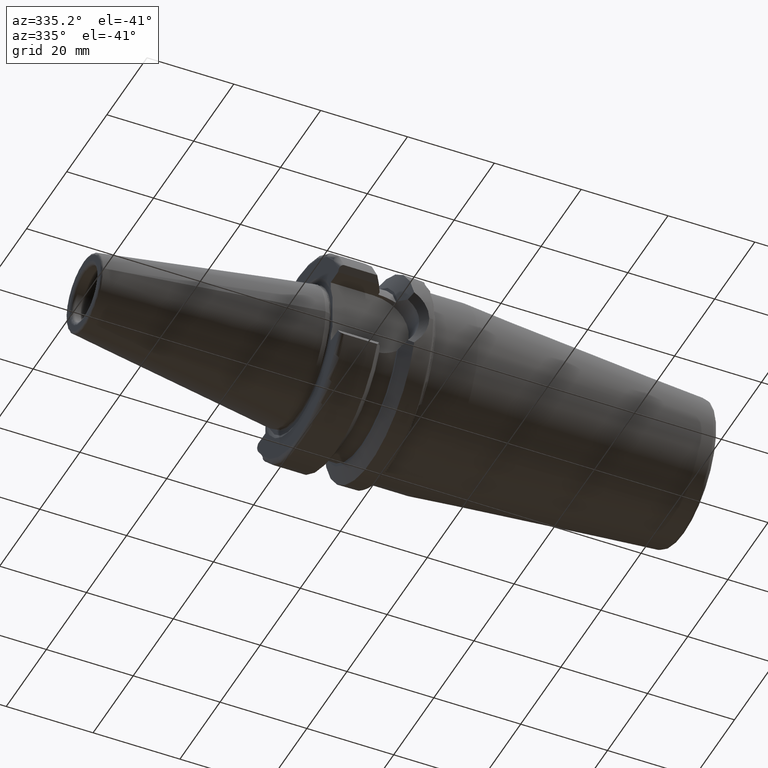
[diagram: clean part render]
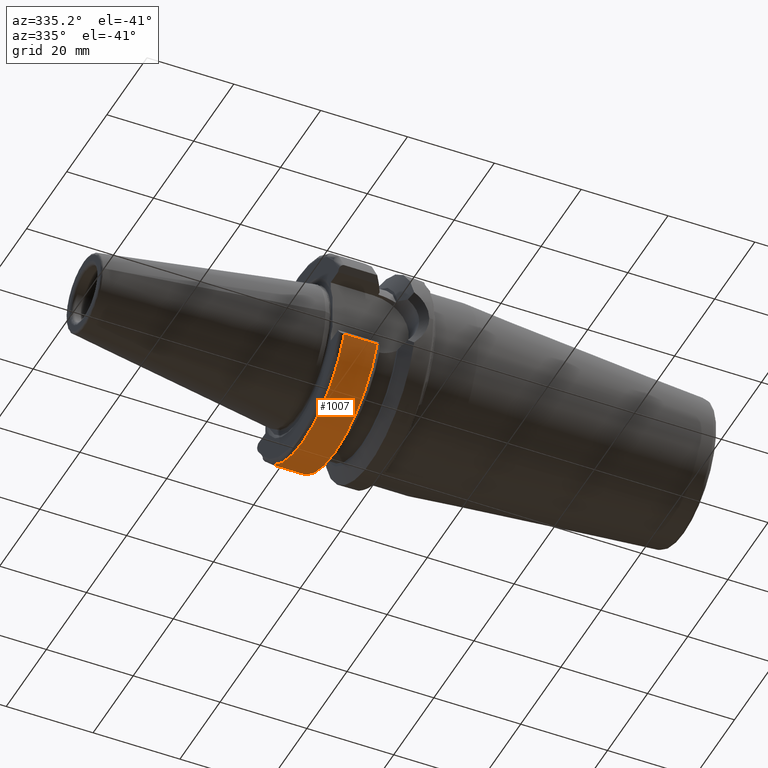
[diagram: same view with one face highlighted and labeled with its STEP entity id]
A machine part, auxiliary view. The second image highlights one B-rep face of the part: STEP entity #1007.
In plain terms, the highlighted cylindrical surface (partial cylindrical patch) has radius 23 mm, axis along (1, 0, 0).
Its self-contained STEP definition (entity closure, byte-faithful):
#103=LINE('',#1705,#157);
#106=LINE('',#1742,#160);
#157=VECTOR('',#1287,10.);
#160=VECTOR('',#1300,10.);
#209=CYLINDRICAL_SURFACE('',#1117,23.);
#238=FACE_OUTER_BOUND('',#304,.T.);
#304=EDGE_LOOP('',(#750,#751,#752,#753));
#375=CIRCLE('',#1115,22.9999999999999);
#377=CIRCLE('',#1118,23.);
#444=VERTEX_POINT('',#1693);
#445=VERTEX_POINT('',#1704);
#448=VERTEX_POINT('',#1714);
#454=VERTEX_POINT('',#1740);
#556=EDGE_CURVE('',#444,#445,#103,.T.);
#560=EDGE_CURVE('',#445,#448,#375,.T.);
#567=EDGE_CURVE('',#444,#454,#377,.T.);
#568=EDGE_CURVE('',#448,#454,#106,.T.);
#750=ORIENTED_EDGE('',*,*,#556,.F.);
#751=ORIENTED_EDGE('',*,*,#567,.T.);
#752=ORIENTED_EDGE('',*,*,#568,.F.);
#753=ORIENTED_EDGE('',*,*,#560,.F.);
#1007=ADVANCED_FACE('',(#238),#209,.T.);
#1115=AXIS2_PLACEMENT_3D('',#1715,#1292,#1293);
#1117=AXIS2_PLACEMENT_3D('',#1739,#1296,#1297);
#1118=AXIS2_PLACEMENT_3D('',#1741,#1298,#1299);
#1287=DIRECTION('',(1.,1.62798202122572E-21,0.));
#1292=DIRECTION('center_axis',(1.,1.62798202122572E-21,0.));
#1293=DIRECTION('ref_axis',(0.,0.,-1.));
#1296=DIRECTION('center_axis',(1.,1.62798202122572E-21,0.));
#1297=DIRECTION('ref_axis',(0.,1.,0.));
#1298=DIRECTION('center_axis',(1.,1.62798202122572E-21,0.));
#1299=DIRECTION('ref_axis',(0.,0.,-1.));
#1300=DIRECTION('',(-1.,-1.62798202122572E-21,0.));
#1693=CARTESIAN_POINT('',(2.,-20.9334497921536,-9.52841433814591));
#1704=CARTESIAN_POINT('',(9.57005904049382,-20.9334497921535,-9.52841433814587));
#1705=CARTESIAN_POINT('',(5.78502952024691,-20.9334497921536,-9.52841433814589));
#1714=CARTESIAN_POINT('',(9.57005904049382,20.9334497921535,-9.52841433814587));
#1715=CARTESIAN_POINT('Origin',(9.57005904049382,2.08175114951191E-15,0.));
#1739=CARTESIAN_POINT('Origin',(5.78502952024691,2.0817449875519E-15,0.));
#1740=CARTESIAN_POINT('',(2.,20.9334497921536,-9.52841433814591));
#1741=CARTESIAN_POINT('Origin',(2.,2.08173882559189E-15,0.));
#1742=CARTESIAN_POINT('',(5.78502952024691,20.9334497921536,-9.52841433814589));